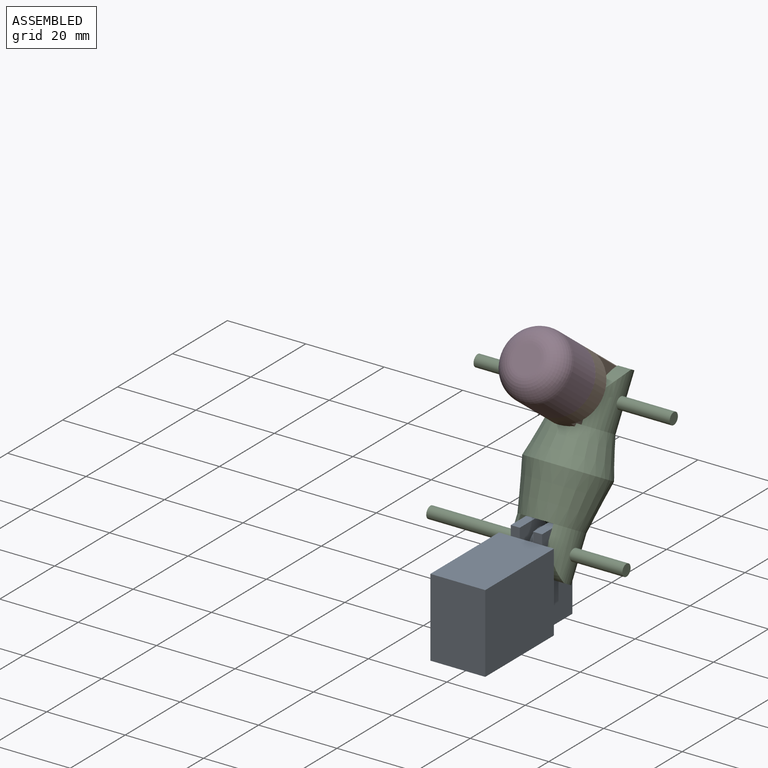
[diagram: assembled view]
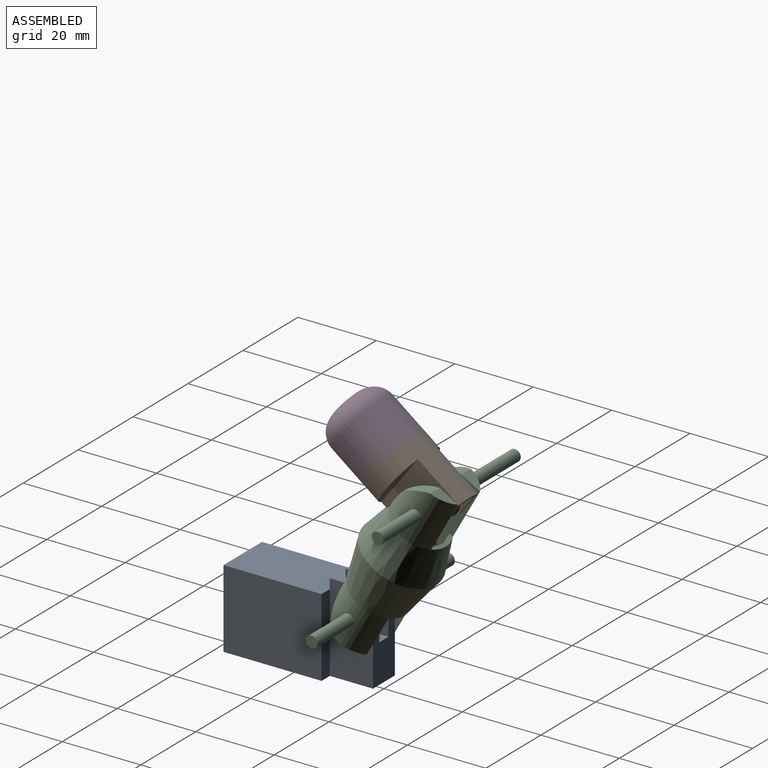
[diagram: assembled view, second angle]
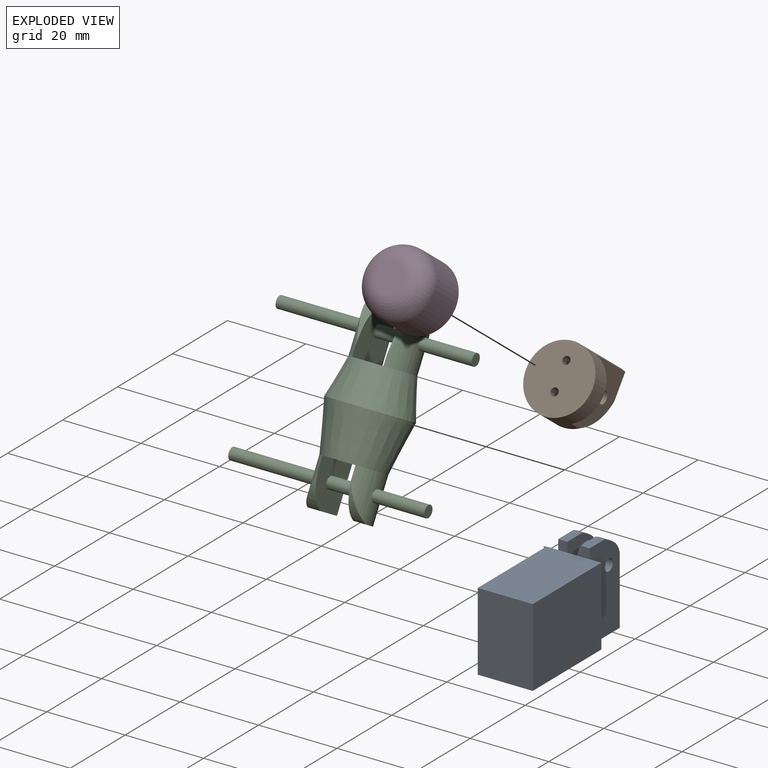
[diagram: exploded view]
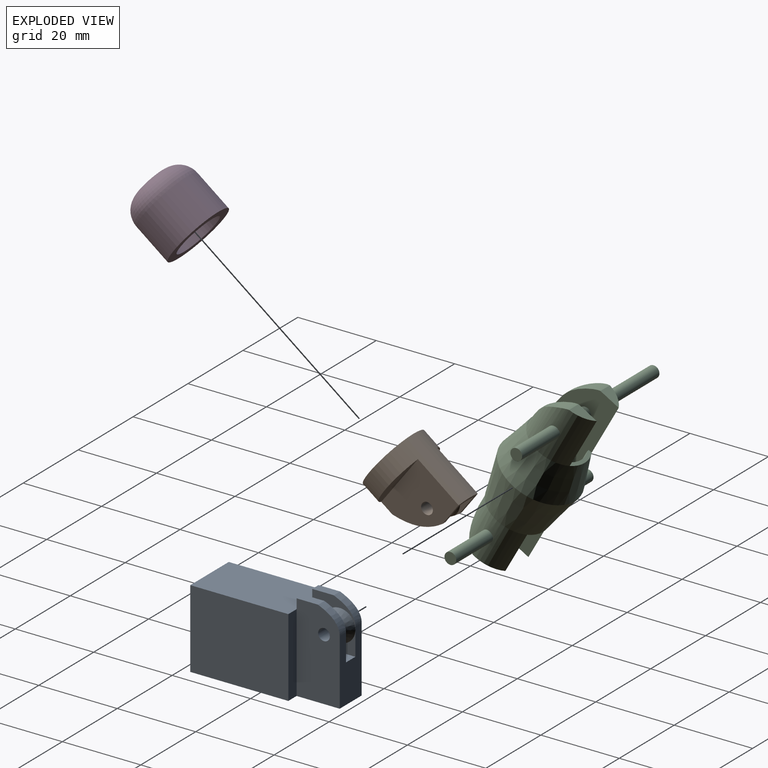
[diagram: exploded view, second angle]
ASSEMBLY  parts=4 mates=3
PART A: 24 faces, bbox 14x36x22.5 mm
  f0: plane 2.5x2.3mm, normal (0,-1,0), area 5.7mm2, adj f3,f4,f5,f13
  f1: plane 2.5x2.3mm, normal (0,-1,0), area 5.7mm2, adj f8,f9,f10,f13
  f2: plane 11x3.4mm, normal (0,0,1), area 37.4mm2, adj f3,f7,f8,f12
  f3: plane 12.7x11mm, normal (1,0,0), area 80mm2, adj f0,f2,f4,f7,f12,f20,f23
  f4: plane 5.5x2.3mm, normal (0,0,1), area 12.7mm2, adj f0,f3,f5,f23
  f5: plane 22.5x11mm, normal (-1,0,0), area 231mm2, adj f0,f4,f6,f7,f17,f18,f23
  f6: plane 36x14mm, normal (0,0,-1), area 438mm2, adj f5,f7,f10,f11,f14,f15,f16,f17
  f7: plane 16.76x8mm, normal (0,1,0), area 110.4mm2, adj f2,f3,f5,f6,f8,f10,f22,f23
  f8: plane 12.7x11mm, normal (-1,0,0), area 80mm2, adj f1,f2,f7,f9,f12,f21,f22
  f9: plane 5.5x2.3mm, normal (0,0,1), area 12.7mm2, adj f1,f8,f10,f22
  f10: plane 22.5x11mm, normal (1,0,0), area 231mm2, adj f1,f6,f7,f9,f11,f18,f22
  f11: plane 20x3mm, normal (0,1,0), area 60mm2, adj f6,f10,f13,f15
  f12: plane 10.2x3.4mm, normal (0,1,0), area 34.7mm2, adj f2,f3,f8,f13
  f13: plane 25x14mm, normal (0,0,1), area 350mm2, adj f0,f1,f11,f12,f14,f15,f16,f17
  f14: plane 25x20mm, normal (-1,0,0), area 500mm2, adj f6,f13,f16,f17
  f15: plane 25x20mm, normal (1,0,0), area 500mm2, adj f6,f11,f13,f16
  f16: plane 20x14mm, normal (0,-1,0), area 280mm2, adj f6,f13,f14,f15
  f17: plane 20x3mm, normal (0,1,0), area 60mm2, adj f5,f6,f13,f14
  f18: cylinder r=1.5mm len=8mm, axis (1,0,0), area 75.4mm2, adj f5,f10
  f19: cylinder r=2.5mm len=5mm, axis (1,0,0), area 6.3mm2, adj f20,f21
  f20: cone r=2.5mm half-angle=45deg, axis (-1,0,0), area 43.3mm2, adj f3,f19
  f21: cone r=2.5mm half-angle=45deg, axis (1,0,0), area 43.3mm2, adj f8,f19
  f22: extruded ~5.74x5.5mm, area 19.4mm2, adj f7,f8,f9,f10
  f23: extruded ~5.74x5.5mm, area 19.4mm2, adj f3,f4,f5,f7
PART B: 20 faces, bbox 17x18x17 mm
  f0: plane 7.47x7mm, normal (0,-1,0), area 18.9mm2, adj f1,f2,f3,f7,f9,f11,f12
  f1: extruded ~9.46x8.77mm, area 40.3mm2, adj f0,f3,f7,f8,f9,f10,f11,f16
  f2: cylinder r=8.5mm len=18mm, axis (0,-1,0), area 386.3mm2, adj f0,f3,f4,f5,f6,f7,f8
  f3: plane 15.49x13mm, normal (-1,0,0), area 165.9mm2, adj f0,f1,f2,f6,f14
  f4: plane 15.49x5mm, normal (0,-1,0), area 55.7mm2, adj f2,f7
  f5: plane 17x17mm, normal (0,1,0), area 220.7mm2, adj f2,f18,f19
  f6: plane 15.49x5mm, normal (0,-1,0), area 55.7mm2, adj f2,f3
  f7: plane 15.49x13mm, normal (1,0,0), area 165.9mm2, adj f0,f1,f2,f4,f14
  f8: plane 7x0.75mm, normal (0,-1,0), area 3.6mm2, adj f1,f2
  f9: plane 16x13.89mm, normal (-1,0,0), area 144.6mm2, adj f0,f1,f10,f12,f13,f16
  f10: plane 8.88x5mm, normal (0,0,-1), area 44.4mm2, adj f1,f9,f11,f13
  f11: plane 16x13.89mm, normal (1,0,0), area 144.6mm2, adj f0,f1,f10,f12,f13,f17
  f12: cylinder r=7.5mm len=16mm, axis (0,-1,0), area 81.6mm2, adj f0,f9,f11,f13
  f13: plane 14.25x5mm, normal (0,-1,0), area 64.2mm2, adj f9,f10,f11,f12,f18,f19
  f14: cylinder r=1.5mm len=7mm, axis (1,0,0), area 66mm2, adj f3,f7
  f15: cylinder r=2.5mm len=5mm, axis (1,0,0), area 23.6mm2, adj f16,f17
  f16: cone r=2.5mm half-angle=45deg, axis (1,0,0), area 51.9mm2, adj f1,f9,f15
  f17: cone r=2.5mm half-angle=45deg, axis (-1,0,0), area 51.9mm2, adj f1,f11,f15
  f18: cylinder r=1mm len=2mm, axis (0,-1,0), area 12.6mm2, adj f5,f13
  f19: cylinder r=1mm len=2mm, axis (0,-1,0), area 12.6mm2, adj f5,f13
PART C: 37 faces, bbox 50.2x46.8x20 mm
  f0: plane 15x8.4mm, normal (0,-1,0), area 21.7mm2, adj f4,f5,f8,f9,f11,f21,f22,f23
  f1: plane 8x2mm, normal (0,1,0), area 8.3mm2, adj f8,f9,f12,f21,f22,f25
  f2: plane 8x2mm, normal (0,1,0), area 8.3mm2, adj f8,f9,f12,f23,f24,f26
  f3: cylinder r=7.5mm len=12.43mm, axis (0,1,0), area 140.3mm2, adj f4,f11,f17,f20,f30
  f4: plane 12.43x11.3mm, normal (1,0,0), area 120.1mm2, adj f0,f3,f17,f20,f29
  f5: plane 12.43x11.3mm, normal (-1,0,0), area 120.1mm2, adj f0,f6,f18,f19,f29
  f6: cylinder r=7.5mm len=12.43mm, axis (0,1,0), area 140.3mm2, adj f5,f11,f18,f19,f28
  f7: cylinder r=7.5mm len=14mm, axis (0,-1,0), area 170.4mm2, adj f8,f12,f13,f16,f35
  f8: plane 35.5x12.69mm, normal (1,0,0), area 381.3mm2, adj f0,f1,f2,f7,f13,f16,f22,f23
  f9: plane 35.5x12.69mm, normal (-1,0,0), area 381.3mm2, adj f0,f1,f2,f10,f14,f15,f21,f24
  f10: cylinder r=7.5mm len=14mm, axis (0,-1,0), area 170.4mm2, adj f9,f12,f14,f15,f33
  f11: cone r=7.5mm half-angle=11.8deg, axis (0,1,0), area 673.9mm2, adj f0,f3,f6,f12
  f12: cone r=10mm half-angle=14.7deg, axis (0,-1,0), area 540.1mm2, adj f1,f2,f7,f10,f11
  f13: plane 5.36x3.43mm, normal (0,1,0), area 12.2mm2, adj f7,f8,f16
  f14: plane 5.36x3.43mm, normal (0,1,0), area 12.2mm2, adj f9,f10,f15
  f15: extruded ~11.42x7.33mm, area 29.2mm2, adj f9,f10,f14
  f16: extruded ~11.42x7.33mm, area 29.2mm2, adj f7,f8,f13
  f17: plane 6.96x3.3mm, normal (0,-1,0), area 16.9mm2, adj f3,f4,f20
  f18: plane 6.96x3.3mm, normal (0,-1,0), area 16.9mm2, adj f5,f6,f19
  f19: extruded ~7.71x5.47mm, area 17.5mm2, adj f5,f6,f18
  f20: extruded ~7.71x5.47mm, area 17.5mm2, adj f3,f4,f17
  f21: plane 21.5x0.53mm, normal (0,0,1), area 11.5mm2, adj f0,f1,f9,f25
  f22: plane 21.5x0.53mm, normal (0,0,1), area 11.5mm2, adj f0,f1,f8,f25
  f23: plane 21.5x0.53mm, normal (0,0,-1), area 11.5mm2, adj f0,f2,f8,f26
  f24: plane 21.5x0.53mm, normal (0,0,-1), area 11.5mm2, adj f0,f2,f9,f26
  f25: cylinder r=6.5mm len=21.5mm, axis (0,1,0), area 157.2mm2, adj f0,f1,f21,f22
  f26: cylinder r=6.5mm len=21.5mm, axis (0,1,0), area 157.2mm2, adj f0,f2,f23,f24
  f27: plane 3x3mm, normal (1,0,0), area 7.1mm2, adj f28
  f28: cylinder r=1.5mm len=13.47mm, axis (-1,0,0), area 126.1mm2, adj f6,f27
  f29: cylinder r=1.5mm len=8.4mm, axis (-1,0,0), area 79.2mm2, adj f4,f5
  f30: cylinder r=1.5mm len=21.87mm, axis (-1,0,0), area 205.2mm2, adj f3,f31
  f31: plane 3x3mm, normal (-1,0,0), area 7.1mm2, adj f30
  f32: plane 3x3mm, normal (1,0,0), area 7.1mm2, adj f33
  f33: cylinder r=1.5mm len=13.79mm, axis (-1,0,0), area 128.2mm2, adj f10,f32
  f34: cylinder r=1.5mm len=8mm, axis (-1,0,0), area 75.4mm2, adj f8,f9
  f35: cylinder r=1.5mm len=21.79mm, axis (-1,0,0), area 203.6mm2, adj f7,f36
  f36: plane 3x3mm, normal (-1,0,0), area 7.1mm2, adj f35
PART D: 7 faces, bbox 17x15x17 mm
  f0: cylinder r=8.5mm len=17mm, axis (0,-1,0), area 534.1mm2, adj f2,f3
  f1: plane 7x7mm, normal (0,1,0), area 38.5mm2, adj f3
  f2: plane 17x17mm, normal (0,-1,0), area 113.9mm2, adj f0,f4
  f3: torus R=3.5mm, axis (0,1,0), area 329.8mm2, adj f0,f1
  f4: cylinder r=6mm len=12mm, axis (0,-1,0), area 377mm2, adj f2,f6
  f5: plane 7x7mm, normal (0,-1,0), area 38.5mm2, adj f6
  f6: torus R=3.5mm, axis (0,1,0), area 125.6mm2, adj f4,f5
PLACE A at identity fixed
PLACE B rot(axis=(1,0,0),142.8deg) t=(-0.7,45.44,39.1)mm
PLACE C rot(axis=(1,0,0),60.5deg) t=(-0.2,11.89,11.6)mm
PLACE D rot(axis=(1,0,0),142.8deg) t=(-0.7,45.43,39.08)mm
MATE fastened D.f0 <-> B.f5  axis (0,0.8,-0.6) through (-0.7,1.97,52.11)mm
MATE revolute B.f14 <-> C.f33  axis (1,0,0) through (-4.2,12.94,44.53)mm
MATE revolute A.f18 <-> C.f28  axis (1,0,0) through (4,-4,16)mm
